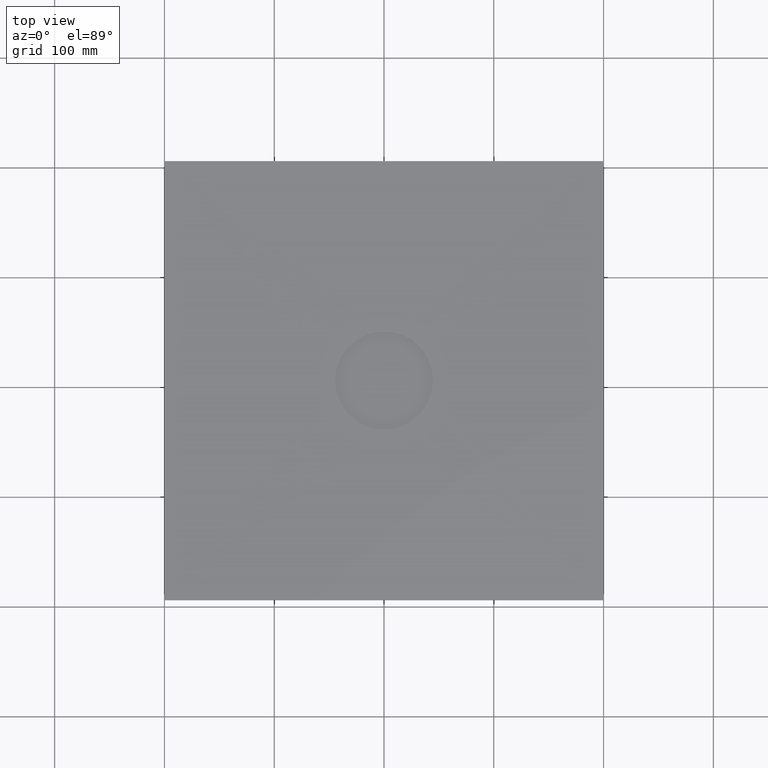
[diagram: clean part render]
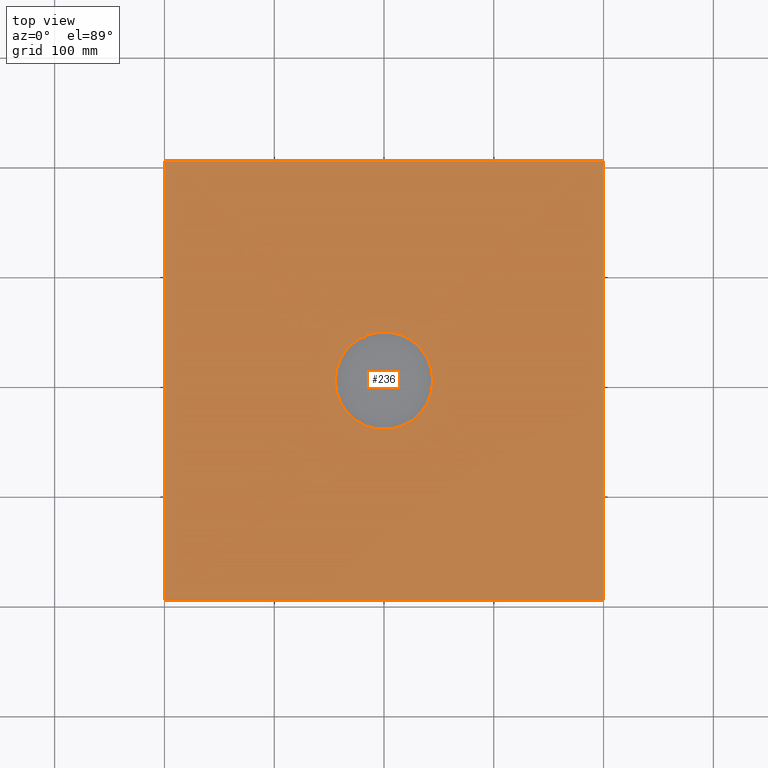
[diagram: same view with one face highlighted and labeled with its STEP entity id]
A machine part, top view. The second image highlights one B-rep face of the part: STEP entity #236.
In plain terms, the highlighted planar face has unit normal (0, 0, 1).
Its self-contained STEP definition (entity closure, byte-faithful):
#20=FACE_BOUND('',#56,.T.);
#26=PLANE('',#278);
#38=FACE_OUTER_BOUND('',#55,.T.);
#55=EDGE_LOOP('',(#193,#194,#195,#196));
#56=EDGE_LOOP('',(#197,#198));
#67=LINE('',#387,#85);
#71=LINE('',#395,#89);
#74=LINE('',#401,#92);
#77=LINE('',#406,#95);
#85=VECTOR('',#313,304.8);
#89=VECTOR('',#319,304.8);
#92=VECTOR('',#324,304.8);
#95=VECTOR('',#329,304.8);
#101=CIRCLE('',#268,44.4499999999999);
#103=CIRCLE('',#271,44.4499999999999);
#113=VERTEX_POINT('',#373);
#114=VERTEX_POINT('',#374);
#117=VERTEX_POINT('',#385);
#118=VERTEX_POINT('',#386);
#121=VERTEX_POINT('',#394);
#123=VERTEX_POINT('',#400);
#133=EDGE_CURVE('',#113,#114,#101,.T.);
#137=EDGE_CURVE('',#114,#113,#103,.T.);
#139=EDGE_CURVE('',#117,#118,#67,.T.);
#143=EDGE_CURVE('',#121,#117,#71,.T.);
#146=EDGE_CURVE('',#123,#121,#74,.T.);
#149=EDGE_CURVE('',#118,#123,#77,.T.);
#193=ORIENTED_EDGE('',*,*,#149,.T.);
#194=ORIENTED_EDGE('',*,*,#146,.T.);
#195=ORIENTED_EDGE('',*,*,#143,.T.);
#196=ORIENTED_EDGE('',*,*,#139,.T.);
#197=ORIENTED_EDGE('',*,*,#137,.T.);
#198=ORIENTED_EDGE('',*,*,#133,.T.);
#236=ADVANCED_FACE('',(#38,#20),#26,.T.);
#268=AXIS2_PLACEMENT_3D('',#375,#299,#300);
#271=AXIS2_PLACEMENT_3D('',#382,#307,#308);
#278=AXIS2_PLACEMENT_3D('',#409,#333,#334);
#299=DIRECTION('center_axis',(0.,0.,-1.));
#300=DIRECTION('ref_axis',(1.,1.61554457443259E-15,0.));
#307=DIRECTION('center_axis',(0.,0.,-1.));
#308=DIRECTION('ref_axis',(1.,1.61554457443259E-15,0.));
#313=DIRECTION('',(0.,1.,0.));
#319=DIRECTION('',(1.,-1.69197988952874E-16,0.));
#324=DIRECTION('',(-8.45989944764366E-17,-1.,0.));
#329=DIRECTION('',(-1.,8.45989944764371E-17,0.));
#333=DIRECTION('center_axis',(0.,0.,1.));
#334=DIRECTION('ref_axis',(-1.,8.45989944764371E-17,0.));
#373=CARTESIAN_POINT('',(44.4499999999999,2.36877184534023E-13,-217.999999999993));
#374=CARTESIAN_POINT('',(-44.4499999999999,-1.35358391162299E-13,-217.999999999993));
#375=CARTESIAN_POINT('Origin',(0.,-7.29742912929166E-14,-217.999999999993));
#382=CARTESIAN_POINT('Origin',(0.,-7.29742912929166E-14,-217.999999999993));
#385=CARTESIAN_POINT('',(200.,-200.000000000001,-217.999999999993));
#386=CARTESIAN_POINT('',(200.,200.000000000001,-217.999999999993));
#387=CARTESIAN_POINT('',(200.,-200.000000000001,-217.999999999993));
#394=CARTESIAN_POINT('',(-200.,-200.000000000001,-217.999999999993));
#395=CARTESIAN_POINT('',(-200.,-200.000000000001,-217.999999999993));
#400=CARTESIAN_POINT('',(-200.,200.000000000001,-217.999999999993));
#401=CARTESIAN_POINT('',(-200.,200.000000000001,-217.999999999993));
#406=CARTESIAN_POINT('',(200.,200.000000000001,-217.999999999993));
#409=CARTESIAN_POINT('Origin',(-200.,200.000000000001,-217.999999999993));